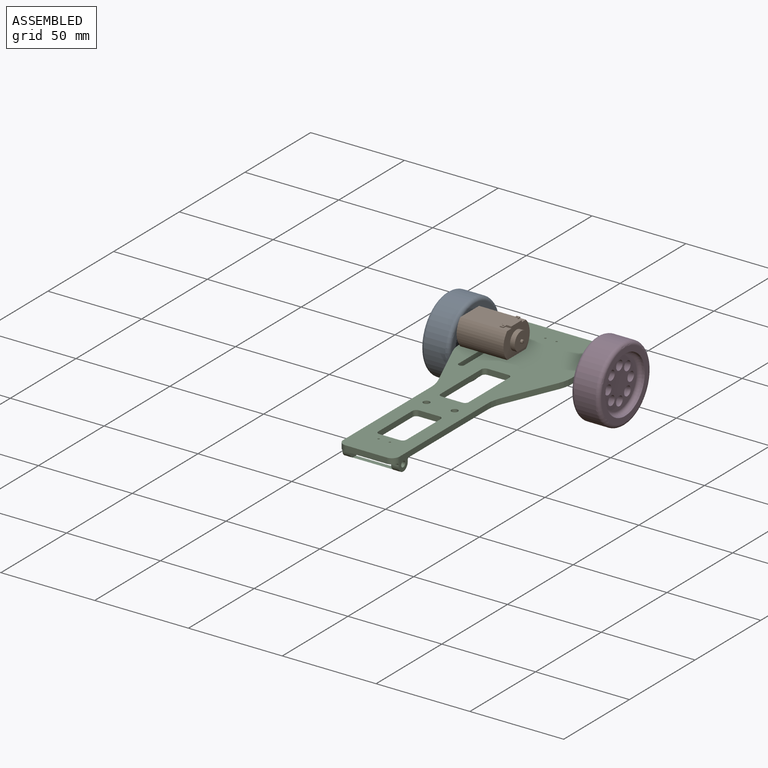
[diagram: assembled view]
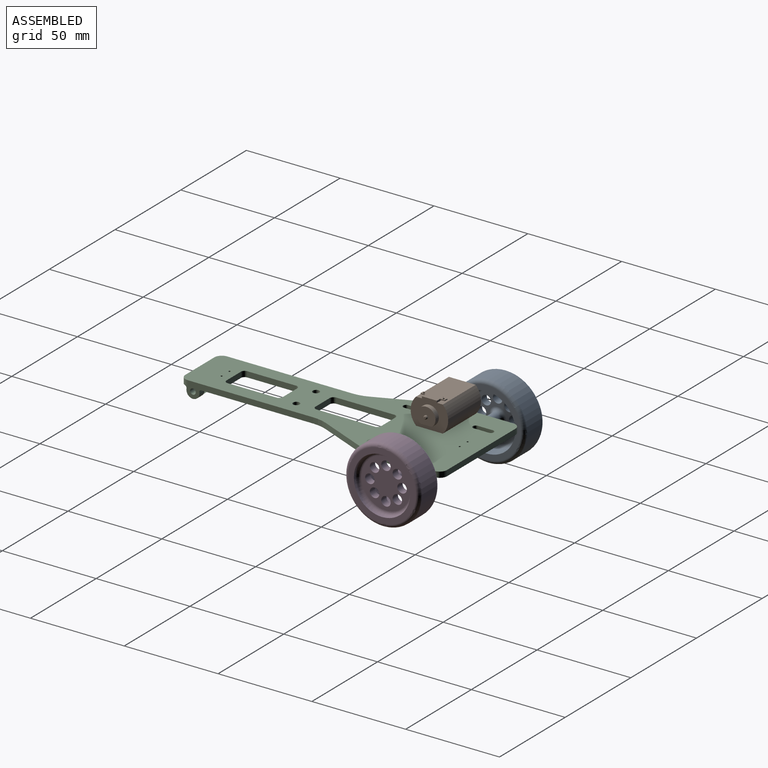
[diagram: assembled view, second angle]
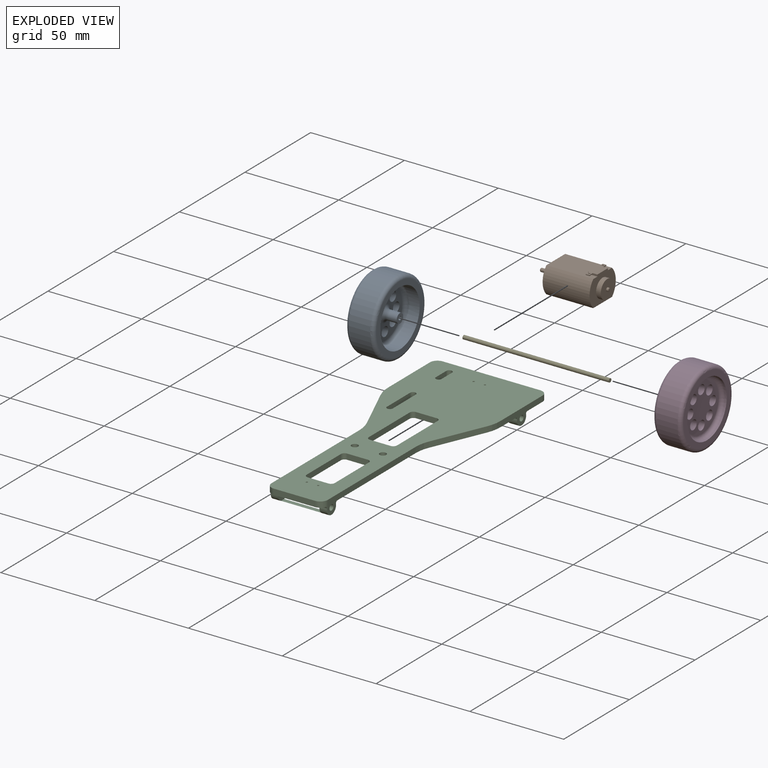
[diagram: exploded view]
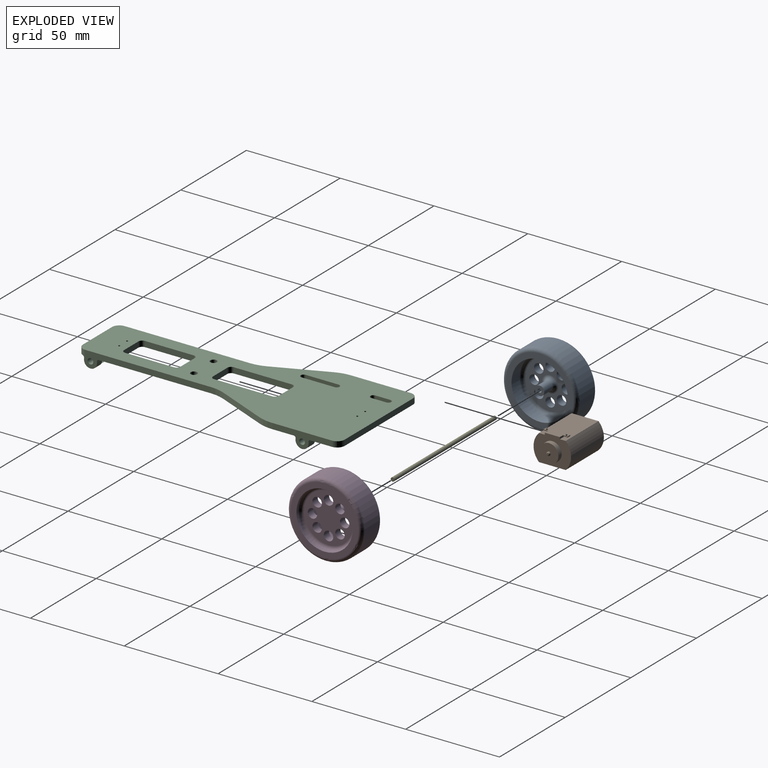
[diagram: exploded view, second angle]
ASSEMBLY  parts=5 mates=3
PART A: 24 faces, bbox 15.4x43.3x43.3 mm
  f0: plane 2.02x2mm, normal (1,0,0), area 3.1mm2, adj f1
  f1: cylinder r=1mm len=8mm, axis (1,0,0), area 50.3mm2, adj f0,f2
  f2: plane 5.02x5mm, normal (1,0,0), area 16.5mm2, adj f1,f3
  f3: cylinder r=2.5mm len=6mm, axis (1,0,0), area 94.2mm2, adj f2,f5
  f4: torus R=13mm, axis (1,0,0), area 281.7mm2, adj f6,f7
  f5: torus R=4.5mm, axis (1,0,0), area 63.7mm2, adj f3,f7
  f6: cylinder r=15mm len=30mm, axis (-1,0,0), area 565.5mm2, adj f4,f8
  f7: plane 26.02x26mm, normal (1,0,0), area 310.3mm2, adj f4,f5,f9,f10,f11,f12,f13,f14
  f8: plane 36.03x36mm, normal (1,0,0), area 311mm2, adj f6,f17
  f9: cylinder r=2.5mm len=5mm, axis (-1,0,0), area 62.8mm2, adj f7,f18
  f10: cylinder r=2.5mm len=5mm, axis (-1,0,0), area 62.8mm2, adj f7,f18
  f11: cylinder r=2.5mm len=5mm, axis (-1,0,0), area 62.8mm2, adj f7,f18
  f12: cylinder r=2.5mm len=5mm, axis (-1,0,0), area 62.8mm2, adj f7,f18
  f13: cylinder r=2.5mm len=5mm, axis (-1,0,0), area 62.8mm2, adj f7,f18
  f14: cylinder r=2.5mm len=5mm, axis (-1,0,0), area 62.8mm2, adj f7,f18
  f15: cylinder r=2.5mm len=5mm, axis (-1,0,0), area 62.8mm2, adj f7,f18
  f16: cylinder r=2.5mm len=5mm, axis (-1,0,0), area 62.8mm2, adj f7,f18
  f17: torus R=18mm, axis (1,0,0), area 380.4mm2, adj f8,f19
  f18: plane 26.02x26mm, normal (-1,0,0), area 373.8mm2, adj f9,f10,f11,f12,f13,f14,f15,f16
  f19: cylinder r=20mm len=40mm, axis (1,0,0), area 1382.3mm2, adj f17,f21
  f20: torus R=13mm, axis (-1,0,0), area 281.7mm2, adj f18,f22
  f21: torus R=18mm, axis (1,0,0), area 380.4mm2, adj f19,f23
  f22: cylinder r=15mm len=30mm, axis (-1,0,0), area 94.2mm2, adj f20,f23
  f23: plane 36.03x36mm, normal (-1,0,0), area 311mm2, adj f21,f22
PART B: 31 faces, bbox 36.5x20x15 mm
  f0: plane 5x1mm, normal (0,1,0), area 4mm2, adj f2,f3,f19,f20,f26,f27,f28
  f1: plane 5x1mm, normal (0,-1,0), area 4mm2, adj f2,f3,f19,f20,f23,f24,f25
  f2: plane 25x14.28mm, normal (0,0,-1), area 317.1mm2, adj f0,f1,f3,f5,f6,f7,f19
  f3: plane 20x15mm, normal (-1,0,0), area 188.6mm2, adj f0,f1,f2,f4,f5,f6,f13,f14
  f4: plane 25x14.28mm, normal (0,0,1), area 357.1mm2, adj f3,f5,f6,f7
  f5: cylinder r=10mm len=25mm, axis (-1,0,0), area 387.7mm2, adj f2,f3,f4,f7
  f6: cylinder r=10mm len=25mm, axis (-1,0,0), area 387.7mm2, adj f2,f3,f4,f7
  f7: plane 20x14mm, normal (1,0,0), area 226.8mm2, adj f2,f4,f5,f6,f8
  f8: cylinder r=3mm len=6mm, axis (-1,0,0), area 18.8mm2, adj f7,f9
  f9: plane 6x6mm, normal (1,0,0), area 25.4mm2, adj f8,f10
  f10: cylinder r=0.95mm len=6.5mm, axis (-1,0,0), area 38.8mm2, adj f9,f12
  f11: plane 0.9x0.9mm, normal (1,0,0), area 0.6mm2, adj f12
  f12: torus R=0.45mm, axis (1,0,0), area 3.8mm2, adj f10,f11
  f13: plane 6x2.5mm, normal (0,0,1), area 15mm2, adj f3,f14,f15
  f14: cylinder r=5mm len=10mm, axis (1,0,0), area 62.5mm2, adj f3,f13,f15
  f15: plane 10x9mm, normal (-1,0,0), area 71.6mm2, adj f13,f14,f16
  f16: cylinder r=0.95mm len=1.9mm, axis (1,0,0), area 3mm2, adj f15,f18
  f17: plane 0.9x0.9mm, normal (-1,0,0), area 0.6mm2, adj f18
  f18: torus R=0.45mm, axis (-1,0,0), area 3.8mm2, adj f16,f17
  f19: plane 8x1mm, normal (1,0,0), area 8mm2, adj f0,f1,f2,f20
  f20: plane 12.89x5mm, normal (0,0,-1), area 48.2mm2, adj f0,f1,f3,f19,f21,f22,f24,f25
  f21: cylinder r=0.5mm len=1mm, axis (0,0,-1), area 1.6mm2, adj f20,f23
  f22: plane 2x0.5mm, normal (0,-1,0), area 1mm2, adj f20,f23,f24,f25
  f23: plane 2.45x2mm, normal (0,0,1), area 4.1mm2, adj f1,f21,f22,f24,f25
  f24: plane 2.45x0.5mm, normal (1,0,0), area 1.2mm2, adj f1,f20,f22,f23
  f25: plane 2.45x0.5mm, normal (-1,0,0), area 1.2mm2, adj f1,f20,f22,f23
  f26: plane 2.45x0.5mm, normal (-1,0,0), area 1.2mm2, adj f0,f20,f28,f29
  f27: plane 2.45x0.5mm, normal (1,0,0), area 1.2mm2, adj f0,f20,f28,f29
  f28: plane 2.45x2mm, normal (0,0,1), area 4.1mm2, adj f0,f26,f27,f29,f30
  f29: plane 2x0.5mm, normal (0,1,0), area 1mm2, adj f20,f26,f27,f28
  f30: cylinder r=0.5mm len=1mm, axis (0,0,-1), area 1.6mm2, adj f20,f28
PART C: 69 faces, bbox 60x8.3x150 mm
  f0: plane 150x60mm, normal (0,1,0), area 5126.3mm2, adj f10,f11,f12,f13,f14,f15,f16,f17
  f1: plane 150x60mm, normal (0,-1,0), area 4967mm2, adj f4,f5,f7,f8,f9,f10,f11,f12
  f2: cylinder r=3.5mm len=7mm, axis (-1,0,0), area 61mm2, adj f4,f5,f11,f59
  f3: cylinder r=1.5mm len=5mm, axis (-1,0,0), area 47.1mm2, adj f11,f59
  f4: cylinder r=1mm len=5mm, axis (-1,0,0), area 8.7mm2, adj f1,f2,f11,f59
  f5: cylinder r=1mm len=5mm, axis (-1,0,0), area 8.7mm2, adj f1,f2,f11,f59
  f6: cylinder r=1.5mm len=4mm, axis (-1,0,0), area 37.7mm2, adj f14,f57
  f7: cylinder r=1mm len=4mm, axis (-1,0,0), area 6.9mm2, adj f1,f14,f21,f57
  f8: cylinder r=1mm len=3.94mm, axis (-1,0,0), area 6.6mm2, adj f1,f21,f45,f57
  f9: cylinder r=1mm len=5mm, axis (-1,0,0), area 8.7mm2, adj f1,f13,f18,f60
  f10: plane 22x3mm, normal (0,0,1), area 66mm2, adj f0,f1,f45,f46
  f11: plane 31.9x8.27mm, normal (1,0,0), area 120.5mm2, adj f0,f1,f2,f3,f4,f5,f42,f47
  f12: plane 52x3mm, normal (0,0,-1), area 156mm2, adj f0,f1,f47,f48
  f13: plane 31.9x8.27mm, normal (-1,0,0), area 120.5mm2, adj f0,f1,f9,f18,f19,f20,f44,f48
  f14: plane 66.9x8.24mm, normal (1,0,0), area 222.9mm2, adj f0,f1,f6,f7,f21,f41,f45
  f15: plane 27.45x11.77mm, normal (0.92,0,0.39), area 89.6mm2, adj f0,f1,f41,f42
  f16: plane 66.9x8.24mm, normal (-1,0,0), area 222.9mm2, adj f0,f1,f21,f22,f23,f43,f46
  f17: plane 27.45x11.77mm, normal (-0.92,0,0.39), area 89.6mm2, adj f0,f1,f43,f44
  f18: cylinder r=3.5mm len=7mm, axis (-1,0,0), area 61mm2, adj f9,f13,f20,f60
  f19: cylinder r=1.5mm len=5mm, axis (-1,0,0), area 47.1mm2, adj f13,f60
  f20: cylinder r=1mm len=5mm, axis (-1,0,0), area 8.7mm2, adj f1,f13,f18,f60
  f21: cylinder r=3.5mm len=30mm, axis (-1,0,0), area 152.2mm2, adj f7,f8,f14,f16,f23,f24,f45,f46
  f22: cylinder r=1.5mm len=4mm, axis (-1,0,0), area 37.7mm2, adj f16,f58
  f23: cylinder r=1mm len=4mm, axis (-1,0,0), area 6.9mm2, adj f1,f16,f21,f58
  f24: cylinder r=1mm len=3.94mm, axis (-1,0,0), area 6.6mm2, adj f1,f21,f46,f58
  f25: plane 31x3mm, normal (-1,0,0), area 93mm2, adj f0,f1,f33,f36
  f26: plane 11x3mm, normal (0,0,-1), area 33mm2, adj f0,f1,f33,f34
  f27: plane 31x3mm, normal (1,0,0), area 93mm2, adj f0,f1,f34,f35
  f28: plane 11x3mm, normal (0,0,1), area 33mm2, adj f0,f1,f35,f36
  f29: plane 11x3mm, normal (0,0,1), area 33mm2, adj f0,f1,f37,f40
  f30: plane 26x3mm, normal (-1,0,0), area 78mm2, adj f0,f1,f39,f40
  f31: plane 11x3mm, normal (0,0,-1), area 33mm2, adj f0,f1,f38,f39
  f32: plane 26x3mm, normal (1,0,0), area 78mm2, adj f0,f1,f37,f38
  f33: cylinder r=2mm len=3mm, axis (0,-1,0), area 9.4mm2, adj f0,f1,f25,f26
  f34: cylinder r=2mm len=3mm, axis (0,1,0), area 9.4mm2, adj f0,f1,f26,f27
  f35: cylinder r=2mm len=3mm, axis (0,-1,0), area 9.4mm2, adj f0,f1,f27,f28
  f36: cylinder r=2mm len=3mm, axis (0,1,0), area 9.4mm2, adj f0,f1,f25,f28
  f37: cylinder r=2mm len=3mm, axis (0,1,0), area 9.4mm2, adj f0,f1,f29,f32
  f38: cylinder r=2mm len=3mm, axis (0,-1,0), area 9.4mm2, adj f0,f1,f31,f32
  f39: cylinder r=2mm len=3mm, axis (0,1,0), area 9.4mm2, adj f0,f1,f30,f31
  f40: cylinder r=2mm len=3mm, axis (0,-1,0), area 9.4mm2, adj f0,f1,f29,f30
  f41: cylinder r=20mm len=7.88mm, axis (0,1,0), area 24.3mm2, adj f0,f1,f14,f15
  f42: cylinder r=20mm len=7.88mm, axis (0,1,0), area 24.3mm2, adj f0,f1,f11,f15
  f43: cylinder r=20mm len=7.88mm, axis (0,1,0), area 24.3mm2, adj f0,f1,f16,f17
  f44: cylinder r=20mm len=7.88mm, axis (0,-1,0), area 24.3mm2, adj f0,f1,f13,f17
  f45: cylinder r=4mm len=6.86mm, axis (0,1,0), area 21.3mm2, adj f0,f1,f8,f10,f14,f21
  f46: cylinder r=4mm len=6.86mm, axis (0,-1,0), area 21.3mm2, adj f0,f1,f10,f16,f21,f24
  f47: cylinder r=4mm len=4mm, axis (0,-1,0), area 18.8mm2, adj f0,f1,f11,f12
  f48: cylinder r=4mm len=4mm, axis (0,-1,0), area 18.8mm2, adj f0,f1,f12,f13
  f49: plane 8x3mm, normal (-1,0,0), area 24mm2, adj f0,f1,f50,f52
  f50: cylinder r=1.55mm len=3.1mm, axis (0,1,0), area 14.3mm2, adj f0,f1,f49,f51
  f51: plane 8.18x3mm, normal (1,0,0), area 24.5mm2, adj f0,f1,f50,f52
  f52: cylinder r=1.55mm len=3.09mm, axis (0,1,0), area 14.4mm2, adj f0,f1,f49,f51
  f53: plane 17.58x3mm, normal (1,0,0), area 52.7mm2, adj f0,f1,f54,f65
  f54: cylinder r=1.55mm len=3.1mm, axis (0,1,0), area 14.5mm2, adj f0,f1,f53,f55
  f55: plane 8.08x3mm, normal (-1,0,0), area 24.2mm2, adj f0,f1,f54,f66
  f56: plane 22x2.46mm, normal (0,1,0), area 54mm2, adj f21,f57,f58
  f57: plane 8.88x5.01mm, normal (-1,0,0), area 24.2mm2, adj f1,f6,f7,f8,f21,f56
  f58: plane 8.88x5.01mm, normal (1,0,0), area 24.2mm2, adj f1,f21,f22,f23,f24,f56
  f59: plane 8.87x5.27mm, normal (-1,0,0), area 24.8mm2, adj f1,f2,f3,f4,f5
  f60: plane 8.87x5.27mm, normal (1,0,0), area 24.8mm2, adj f1,f9,f18,f19,f20
  f61: cylinder r=0.5mm len=3mm, axis (0,1,0), area 9.4mm2, adj f0,f1
  f62: cylinder r=0.5mm len=3mm, axis (0,1,0), area 9.4mm2, adj f0,f1
  f63: cylinder r=0.5mm len=3mm, axis (0,1,0), area 9.4mm2, adj f0,f1
  f64: cylinder r=0.5mm len=3mm, axis (0,1,0), area 9.4mm2, adj f0,f1
  f65: cylinder r=1.55mm len=3.1mm, axis (0,1,0), area 14.5mm2, adj f0,f1,f53,f66
  f66: plane 9.67x3mm, normal (-1,0,0), area 29mm2, adj f0,f1,f55,f65
  f67: cylinder r=1.75mm len=3.5mm, axis (0,1,0), area 33mm2, adj f0,f1
  f68: cylinder r=1.75mm len=3.5mm, axis (0,1,0), area 33mm2, adj f0,f1
PART D: same geometry as A
PART E: 3 faces, bbox 78x2x2 mm
  f0: plane 2x2mm, normal (1,0,0), area 3.1mm2, adj f1
  f1: cylinder r=1mm len=78mm, axis (1,0,0), area 490.1mm2, adj f0,f2
  f2: plane 2x2mm, normal (-1,0,0), area 3.1mm2, adj f1
PLACE A t=(-55.07,75.33,24.95)mm
PLACE B rot(axis=(0,-1,0),180deg) t=(-23.24,65.12,43.95)mm
PLACE C rot(axis=(1,0,0),90deg) t=(-7.07,20.33,26.95)mm fixed
PLACE D rot(axis=(0,1,0),180deg) t=(39.93,75.33,24.95)mm
PLACE E t=(-7.07,75.33,24.95)mm
MATE fastened E.f1 <-> D.f1  axis (1,0,0) through (31.93,75.33,24.95)mm
MATE fastened E.f1 <-> A.f1  axis (-1,0,0) through (-46.07,75.33,24.95)mm
MATE planar B.f4 <-> C.f0  axis (0,0,-1) through (-35.74,65.12,29.95)mm
